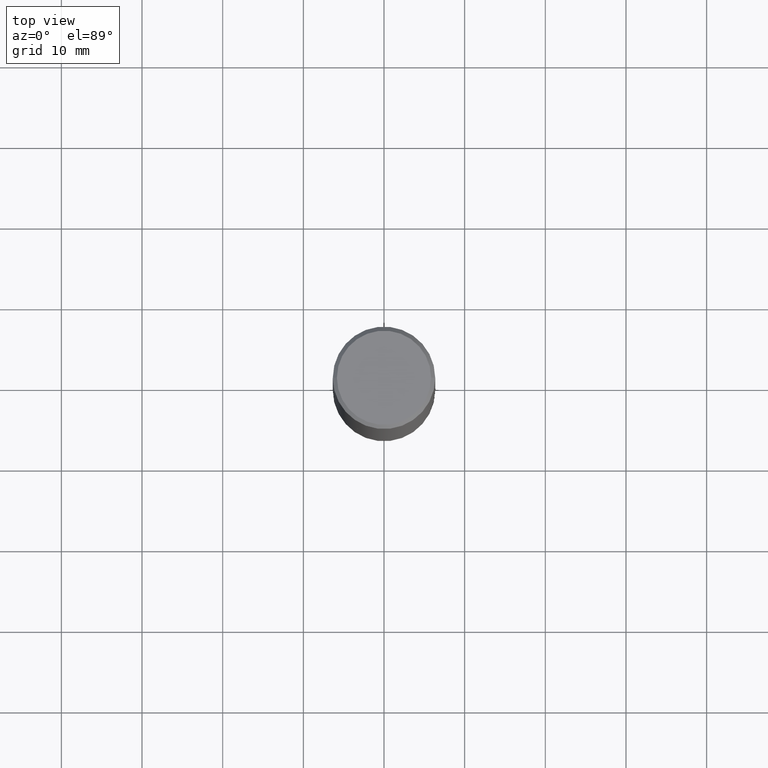
[diagram: clean part render]
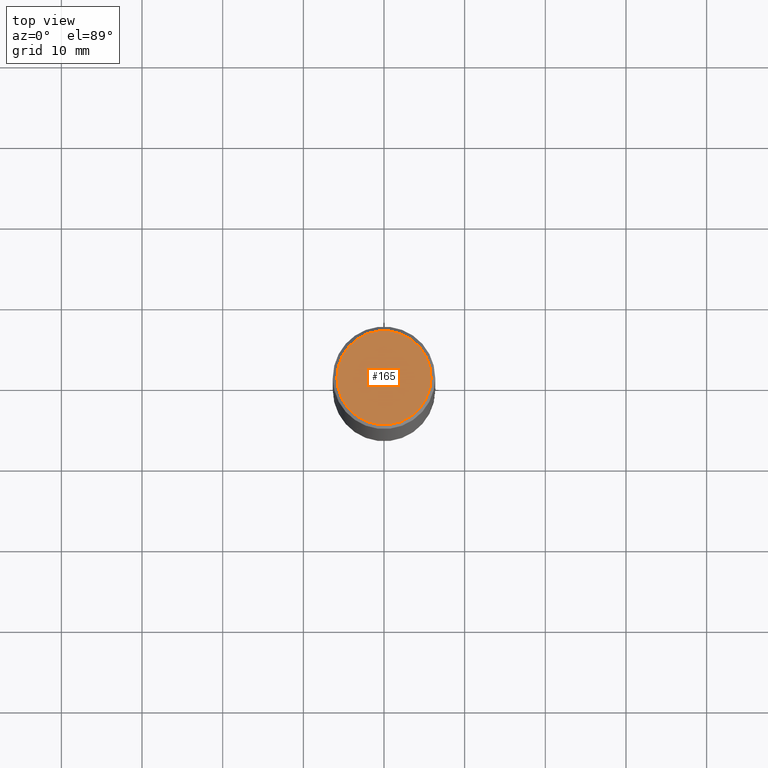
[diagram: same view with one face highlighted and labeled with its STEP entity id]
A machine part, top view. The second image highlights one B-rep face of the part: STEP entity #165.
In plain terms, the highlighted planar face has unit normal (0, -0, -1).
Its self-contained STEP definition (entity closure, byte-faithful):
#25 = PLANE ( 'NONE',  #31 ) ;
#27 = AXIS2_PLACEMENT_3D ( 'NONE', #132, #106, #406 ) ;
#31 = AXIS2_PLACEMENT_3D ( 'NONE', #408, #53, #276 ) ;
#53 = DIRECTION ( 'NONE',  ( 2.438088387897960049E-29, -3.491481338843145188E-15, -1.000000000000000000 ) ) ;
#67 = CIRCLE ( 'NONE', #397, 0.2299999999999999267 ) ;
#98 = EDGE_CURVE ( 'NONE', #198, #224, #250, .T. ) ;
#104 = CARTESIAN_POINT ( 'NONE',  ( 2.087702828670439639E-46, -2.980686340760894400E-32, -8.537024980200822558E-18 ) ) ;
#106 = DIRECTION ( 'NONE',  ( -2.445468806185136597E-29, 3.491481338843145583E-15, 1.000000000000000000 ) ) ;
#107 = ORIENTED_EDGE ( 'NONE', *, *, #98, .T. ) ;
#130 = DIRECTION ( 'NONE',  ( -2.445468806185136597E-29, 3.491481338843145583E-15, 1.000000000000000000 ) ) ;
#132 = CARTESIAN_POINT ( 'NONE',  ( 2.087702828670439639E-46, -2.980686340760894400E-32, -8.537024980200822558E-18 ) ) ;
#136 = EDGE_LOOP ( 'NONE', ( #283, #107 ) ) ;
#165 = ADVANCED_FACE ( 'NONE', ( #376 ), #25, .F. ) ;
#198 = VERTEX_POINT ( 'NONE', #240 ) ;
#216 = CARTESIAN_POINT ( 'NONE',  ( -0.2299999999999999267, 1.640996229256272125E-15, -8.537024980212177841E-18 ) ) ;
#224 = VERTEX_POINT ( 'NONE', #216 ) ;
#240 = CARTESIAN_POINT ( 'NONE',  ( 0.2299999999999999267, -1.681434332853598617E-15, -8.537024980189327067E-18 ) ) ;
#250 = CIRCLE ( 'NONE', #27, 0.2299999999999999267 ) ;
#262 = DIRECTION ( 'NONE',  ( 1.000000000000000000, -6.982962677686267499E-15, 4.876225828469310563E-29 ) ) ;
#276 = DIRECTION ( 'NONE',  ( -1.000000000000000000, 6.982962677686265922E-15, -4.876176775795935793E-29 ) ) ;
#283 = ORIENTED_EDGE ( 'NONE', *, *, #411, .T. ) ;
#376 = FACE_OUTER_BOUND ( 'NONE', #136, .T. ) ;
#397 = AXIS2_PLACEMENT_3D ( 'NONE', #104, #130, #262 ) ;
#406 = DIRECTION ( 'NONE',  ( 1.000000000000000000, -6.982962677686267499E-15, 4.876225828469310563E-29 ) ) ;
#408 = CARTESIAN_POINT ( 'NONE',  ( 1.606081415867840870E-15, 0.2299999999999999267, -8.073092204240237214E-16 ) ) ;
#411 = EDGE_CURVE ( 'NONE', #224, #198, #67, .T. ) ;